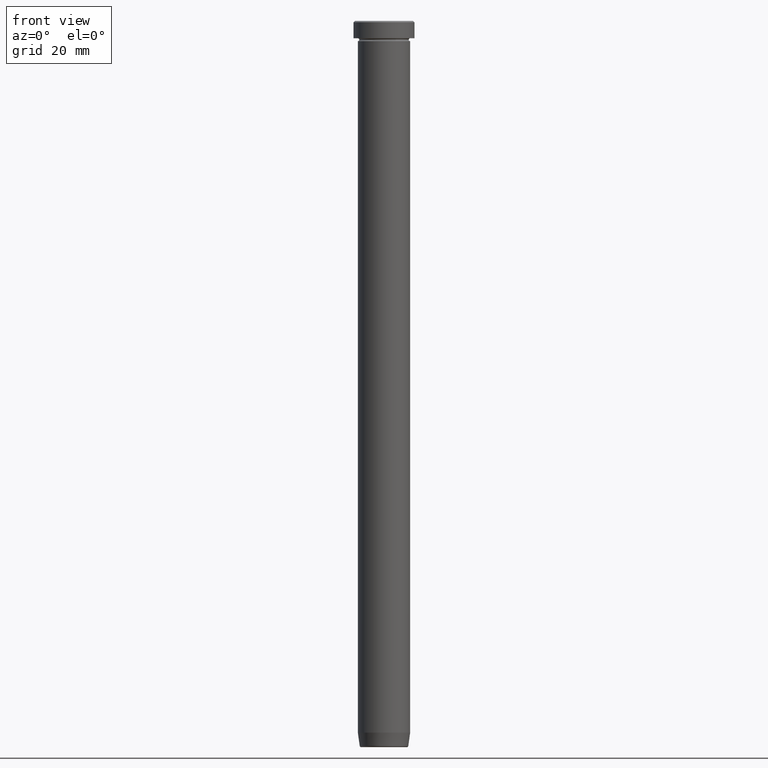
[diagram: clean part render]
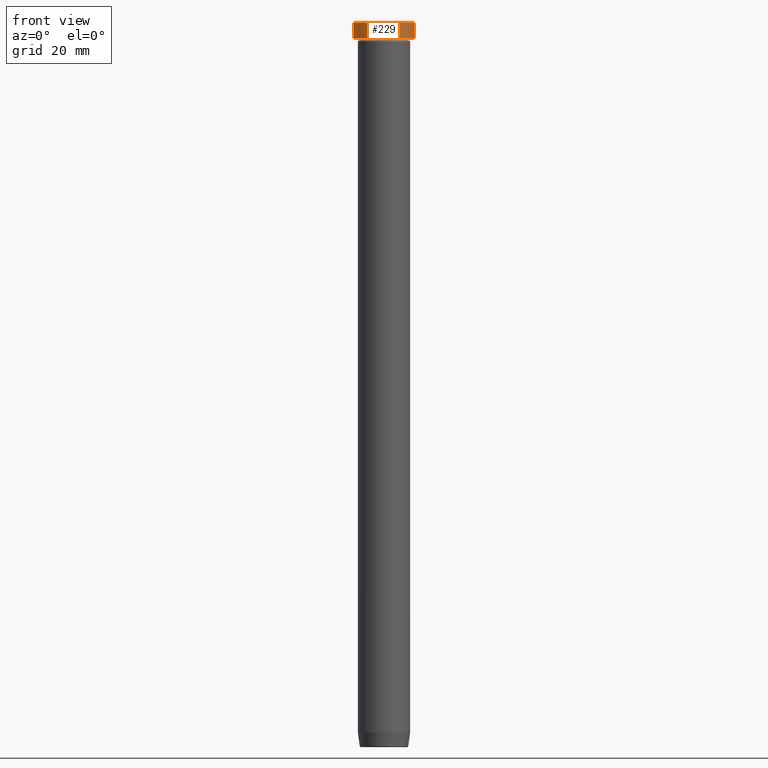
[diagram: same view with one face highlighted and labeled with its STEP entity id]
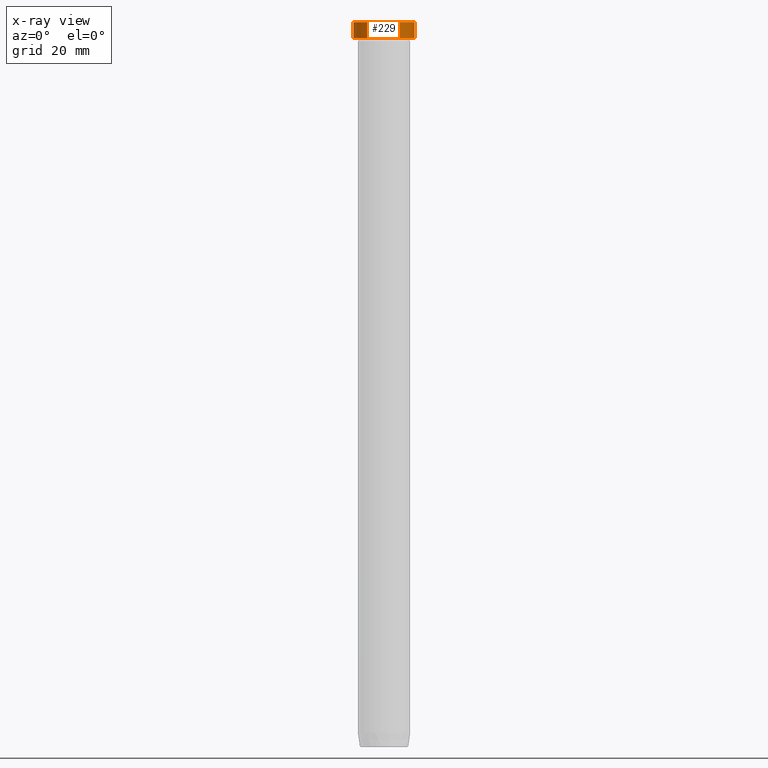
[diagram: x-ray of the same camera — body ghosted, the highlighted face saturated]
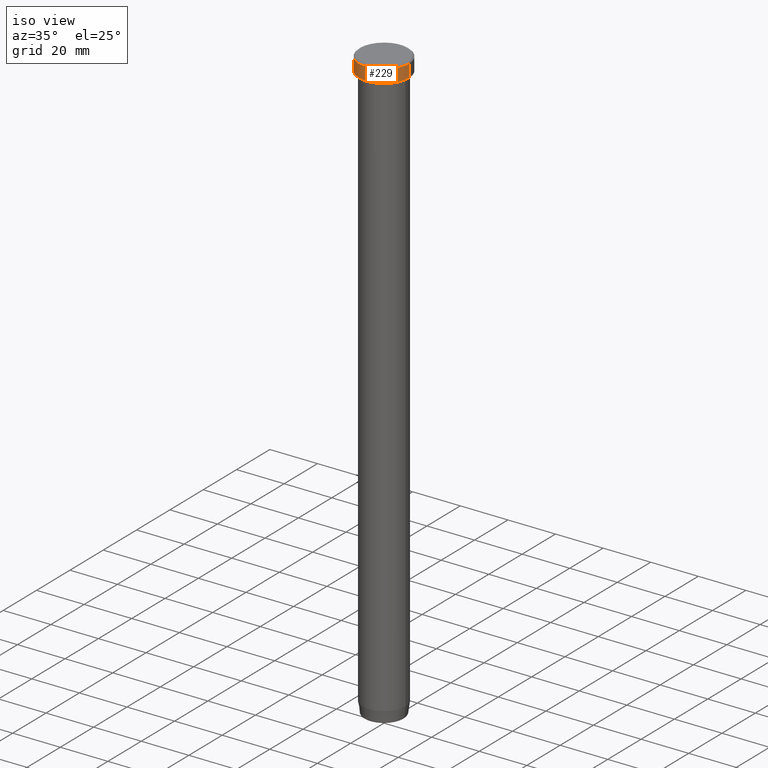
[diagram: same view with one face highlighted and labeled with its STEP entity id]
A machine part, front view. The second image highlights one B-rep face of the part: STEP entity #229.
The next image is the same camera in x-ray: the body ghosted, the highlighted face saturated — about 0% of this face is hidden behind the body in this view.
A second angle (iso view) of the same face is appended — the face is thin or edge-on in the first view.
In plain terms, the highlighted cylindrical surface (edge-blend (fillet) strip) has radius 10.5 mm, axis along (-0, -0, 1).
Its self-contained STEP definition (entity closure, byte-faithful):
#5 = AXIS2_PLACEMENT_3D ( 'NONE', #91, #48, #421 ) ;
#13 = DIRECTION ( 'NONE',  ( -0.000000000000000000, -0.000000000000000000, 1.000000000000000000 ) ) ;
#16 = VERTEX_POINT ( 'NONE', #259 ) ;
#23 = ORIENTED_EDGE ( 'NONE', *, *, #211, .T. ) ;
#48 = DIRECTION ( 'NONE',  ( 0.000000000000000000, 0.000000000000000000, -1.000000000000000000 ) ) ;
#76 = CARTESIAN_POINT ( 'NONE',  ( -10.50000000000000000, 1.285879139104720831E-15, -0.5000000000000023315 ) ) ;
#83 = VERTEX_POINT ( 'NONE', #76 ) ;
#91 = CARTESIAN_POINT ( 'NONE',  ( 0.000000000000000000, 0.000000000000000000, -0.5000000000000023315 ) ) ;
#94 = LINE ( 'NONE', #141, #464 ) ;
#114 = DIRECTION ( 'NONE',  ( 1.000000000000000000, 0.000000000000000000, 0.000000000000000000 ) ) ;
#129 = CIRCLE ( 'NONE', #5, 10.50000000000000000 ) ;
#141 = CARTESIAN_POINT ( 'NONE',  ( 10.50000000000000000, 0.000000000000000000, 0.000000000000000000 ) ) ;
#181 = AXIS2_PLACEMENT_3D ( 'NONE', #207, #209, #114 ) ;
#207 = CARTESIAN_POINT ( 'NONE',  ( 0.000000000000000000, 0.000000000000000000, 0.000000000000000000 ) ) ;
#209 = DIRECTION ( 'NONE',  ( -0.000000000000000000, -0.000000000000000000, 1.000000000000000000 ) ) ;
#211 = EDGE_CURVE ( 'NONE', #410, #467, #441, .T. ) ;
#229 = ADVANCED_FACE ( 'NONE', ( #389 ), #583, .T. ) ;
#248 = ORIENTED_EDGE ( 'NONE', *, *, #500, .T. ) ;
#259 = CARTESIAN_POINT ( 'NONE',  ( 10.50000000000000000, 0.000000000000000000, -0.5000000000000023315 ) ) ;
#266 = DIRECTION ( 'NONE',  ( -0.000000000000000000, -0.000000000000000000, 1.000000000000000000 ) ) ;
#280 = DIRECTION ( 'NONE',  ( 1.000000000000000000, 0.000000000000000000, 0.000000000000000000 ) ) ;
#282 = VECTOR ( 'NONE', #266, 1000.000000000000000 ) ;
#283 = CARTESIAN_POINT ( 'NONE',  ( 10.50000000000000000, 0.000000000000000000, -6.000000000000000000 ) ) ;
#294 = EDGE_LOOP ( 'NONE', ( #514, #23, #326, #248 ) ) ;
#302 = LINE ( 'NONE', #489, #282 ) ;
#326 = ORIENTED_EDGE ( 'NONE', *, *, #519, .T. ) ;
#389 = FACE_OUTER_BOUND ( 'NONE', #294, .T. ) ;
#399 = CARTESIAN_POINT ( 'NONE',  ( -10.50000000000000000, 1.285879139104720831E-15, -6.000000000000000000 ) ) ;
#410 = VERTEX_POINT ( 'NONE', #399 ) ;
#419 = CARTESIAN_POINT ( 'NONE',  ( 0.000000000000000000, 0.000000000000000000, -6.000000000000000000 ) ) ;
#421 = DIRECTION ( 'NONE',  ( 1.000000000000000000, 0.000000000000000000, 0.000000000000000000 ) ) ;
#431 = EDGE_CURVE ( 'NONE', #410, #83, #302, .T. ) ;
#441 = CIRCLE ( 'NONE', #523, 10.50000000000000000 ) ;
#464 = VECTOR ( 'NONE', #13, 1000.000000000000000 ) ;
#465 = DIRECTION ( 'NONE',  ( -0.000000000000000000, -0.000000000000000000, 1.000000000000000000 ) ) ;
#467 = VERTEX_POINT ( 'NONE', #283 ) ;
#489 = CARTESIAN_POINT ( 'NONE',  ( -10.50000000000000000, 1.285879139104720831E-15, 0.000000000000000000 ) ) ;
#500 = EDGE_CURVE ( 'NONE', #16, #83, #129, .T. ) ;
#514 = ORIENTED_EDGE ( 'NONE', *, *, #431, .F. ) ;
#519 = EDGE_CURVE ( 'NONE', #467, #16, #94, .T. ) ;
#523 = AXIS2_PLACEMENT_3D ( 'NONE', #419, #465, #280 ) ;
#583 = CYLINDRICAL_SURFACE ( 'NONE', #181, 10.50000000000000000 ) ;